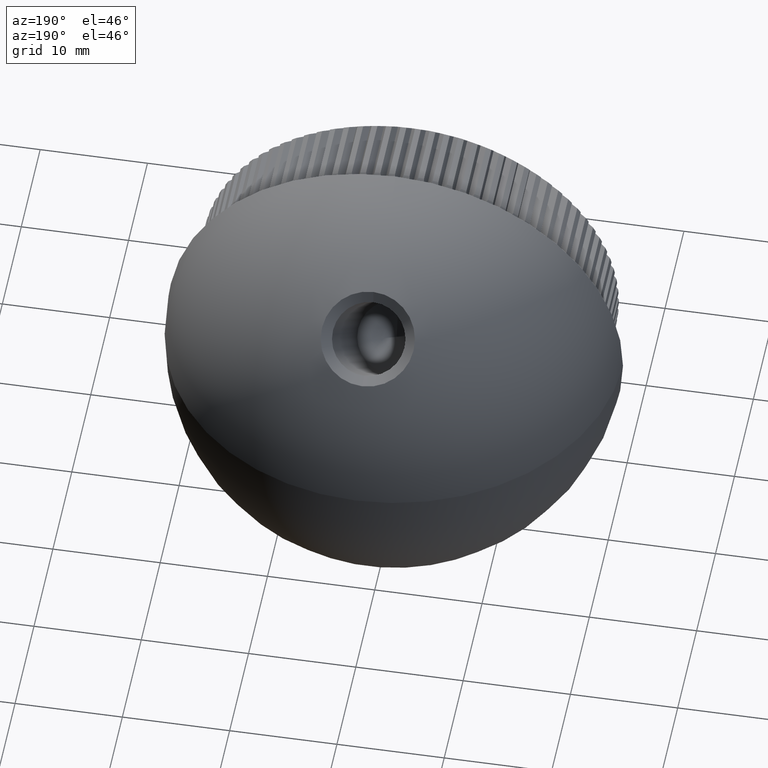
[diagram: clean part render]
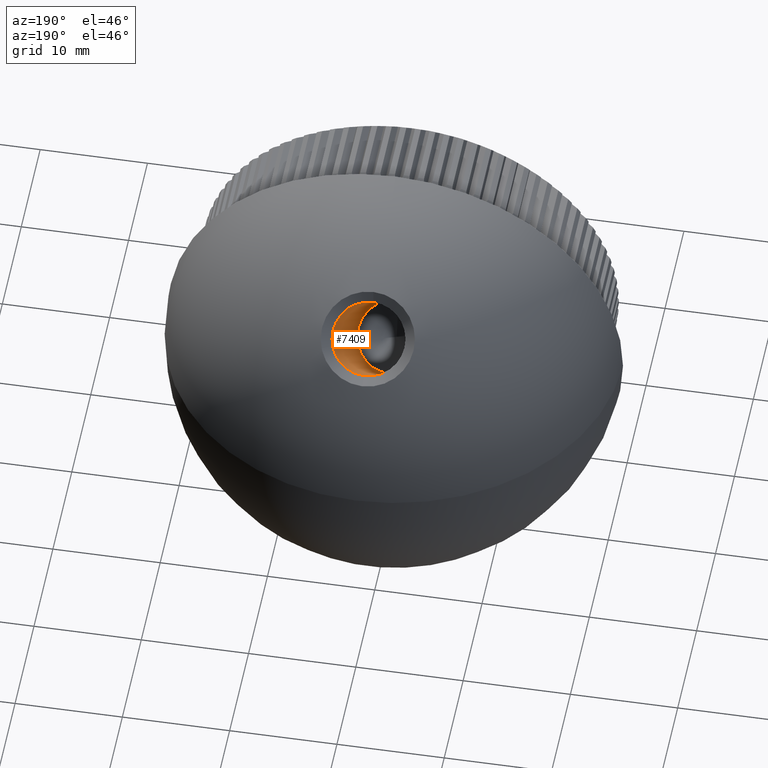
[diagram: same view with one face highlighted and labeled with its STEP entity id]
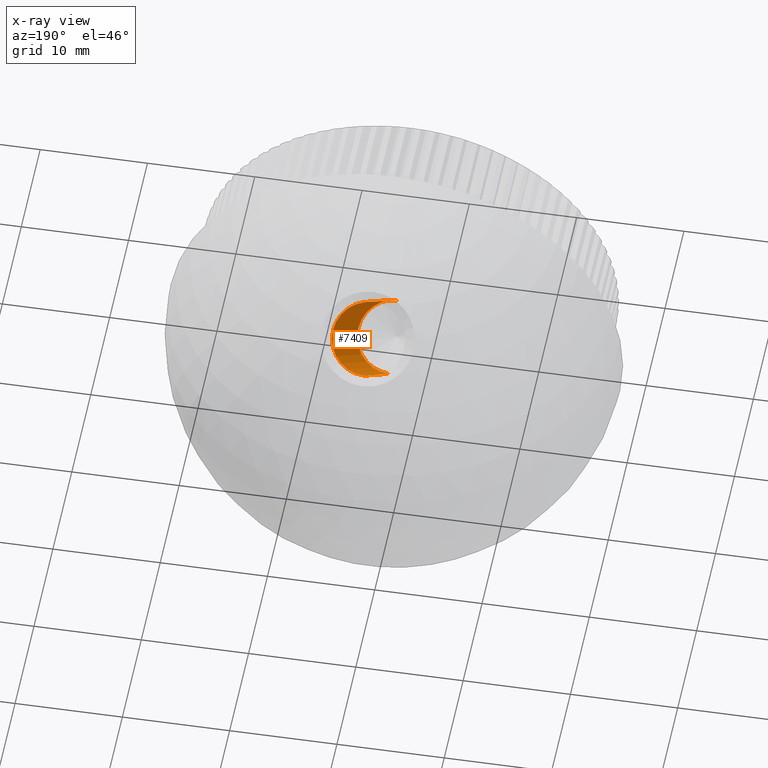
[diagram: x-ray of the same camera — body ghosted, the highlighted face saturated]
A machine part, auxiliary view. The second image highlights one B-rep face of the part: STEP entity #7409.
The next image is the same camera in x-ray: the body ghosted, the highlighted face saturated — about 2% of this face is hidden behind the body in this view.
In plain terms, the highlighted cylindrical surface (partial cylindrical patch) has radius 3.4 mm, axis along (-0, 0.7071, 0.7071).
Its self-contained STEP definition (entity closure, byte-faithful):
#38 = DIRECTION ( 'NONE',  ( -0.0000000000000000000, 0.7071067811865489100, 0.7071067811865462400 ) ) ;
#949 = DIRECTION ( 'NONE',  ( -0.0000000000000000000, 0.7071067811865489100, 0.7071067811865462400 ) ) ;
#1269 = CIRCLE ( 'NONE', #7562, 3.399999999999995000 ) ;
#1347 = CARTESIAN_POINT ( 'NONE',  ( -1.096426340312313600E-015, 7.444365081389605600, 3.252691193458117100 ) ) ;
#2537 = CARTESIAN_POINT ( 'NONE',  ( -1.096426340312313600E-015, 23.18037026621723100, 14.18037026621717800 ) ) ;
#3516 = DIRECTION ( 'NONE',  ( 0.0000000000000000000, -0.7071067811865462400, 0.7071067811865486800 ) ) ;
#4624 = ORIENTED_EDGE ( 'NONE', *, *, #18810, .T. ) ;
#5164 = DIRECTION ( 'NONE',  ( -0.0000000000000000000, 0.7071067811865487900, 0.7071067811865462400 ) ) ;
#5227 = CARTESIAN_POINT ( 'NONE',  ( -6.800464286022144300E-016, 26.39482681718908800, 12.58650070512051800 ) ) ;
#5287 = VECTOR ( 'NONE', #38, 999.9999999999998900 ) ;
#5828 = LINE ( 'NONE', #5227, #5287 ) ;
#6874 = VERTEX_POINT ( 'NONE', #1347 ) ;
#7058 = CIRCLE ( 'NONE', #14323, 3.399999999999992400 ) ;
#7100 = VERTEX_POINT ( 'NONE', #20801 ) ;
#7409 = ADVANCED_FACE ( 'NONE', ( #15689 ), #22714, .F. ) ;
#7562 = AXIS2_PLACEMENT_3D ( 'NONE', #14260, #5164, #3516 ) ;
#8051 = DIRECTION ( 'NONE',  ( 0.0000000000000000000, 0.7071067811865500200, 0.7071067811865450200 ) ) ;
#8521 = CARTESIAN_POINT ( 'NONE',  ( -1.096426340312313600E-015, 23.99066376115483500, 14.99066376115478000 ) ) ;
#9257 = ORIENTED_EDGE ( 'NONE', *, *, #15033, .F. ) ;
#9946 = CARTESIAN_POINT ( 'NONE',  ( -1.096426340312313600E-015, 21.58650070512058500, 17.39482681718904200 ) ) ;
#10862 = VERTEX_POINT ( 'NONE', #14163 ) ;
#10882 = ORIENTED_EDGE ( 'NONE', *, *, #17145, .F. ) ;
#12470 = ORIENTED_EDGE ( 'NONE', *, *, #12687, .T. ) ;
#12687 = EDGE_CURVE ( 'NONE', #7100, #10862, #7058, .T. ) ;
#13413 = DIRECTION ( 'NONE',  ( 0.0000000000000000000, -0.7071067811865450200, 0.7071067811865500200 ) ) ;
#13896 = CARTESIAN_POINT ( 'NONE',  ( -6.800464286022142300E-016, 12.25269119345811200, -1.555634918610407000 ) ) ;
#14163 = CARTESIAN_POINT ( 'NONE',  ( -6.800464286022144300E-016, 25.58453332225147700, 11.77620721018291200 ) ) ;
#14194 = LINE ( 'NONE', #9946, #19285 ) ;
#14260 = CARTESIAN_POINT ( 'NONE',  ( -1.096426340312313600E-015, 9.848528137423858900, 0.8485281374238546900 ) ) ;
#14323 = AXIS2_PLACEMENT_3D ( 'NONE', #2537, #8051, #13413 ) ;
#15033 = EDGE_CURVE ( 'NONE', #19057, #10862, #5828, .T. ) ;
#15689 = FACE_OUTER_BOUND ( 'NONE', #18734, .T. ) ;
#15971 = AXIS2_PLACEMENT_3D ( 'NONE', #8521, #17371, #21135 ) ;
#17145 = EDGE_CURVE ( 'NONE', #6874, #19057, #1269, .T. ) ;
#17371 = DIRECTION ( 'NONE',  ( -0.0000000000000000000, 0.7071067811865487900, 0.7071067811865462400 ) ) ;
#18734 = EDGE_LOOP ( 'NONE', ( #9257, #10882, #4624, #12470 ) ) ;
#18810 = EDGE_CURVE ( 'NONE', #6874, #7100, #14194, .T. ) ;
#19057 = VERTEX_POINT ( 'NONE', #13896 ) ;
#19285 = VECTOR ( 'NONE', #949, 999.9999999999998900 ) ;
#20801 = CARTESIAN_POINT ( 'NONE',  ( -1.096426340312313600E-015, 20.77620721018298500, 16.58453332225144200 ) ) ;
#21135 = DIRECTION ( 'NONE',  ( 0.0000000000000000000, -0.7071067811865460200, 0.7071067811865490200 ) ) ;
#22714 = CYLINDRICAL_SURFACE ( 'NONE', #15971, 3.399999999999992400 ) ;